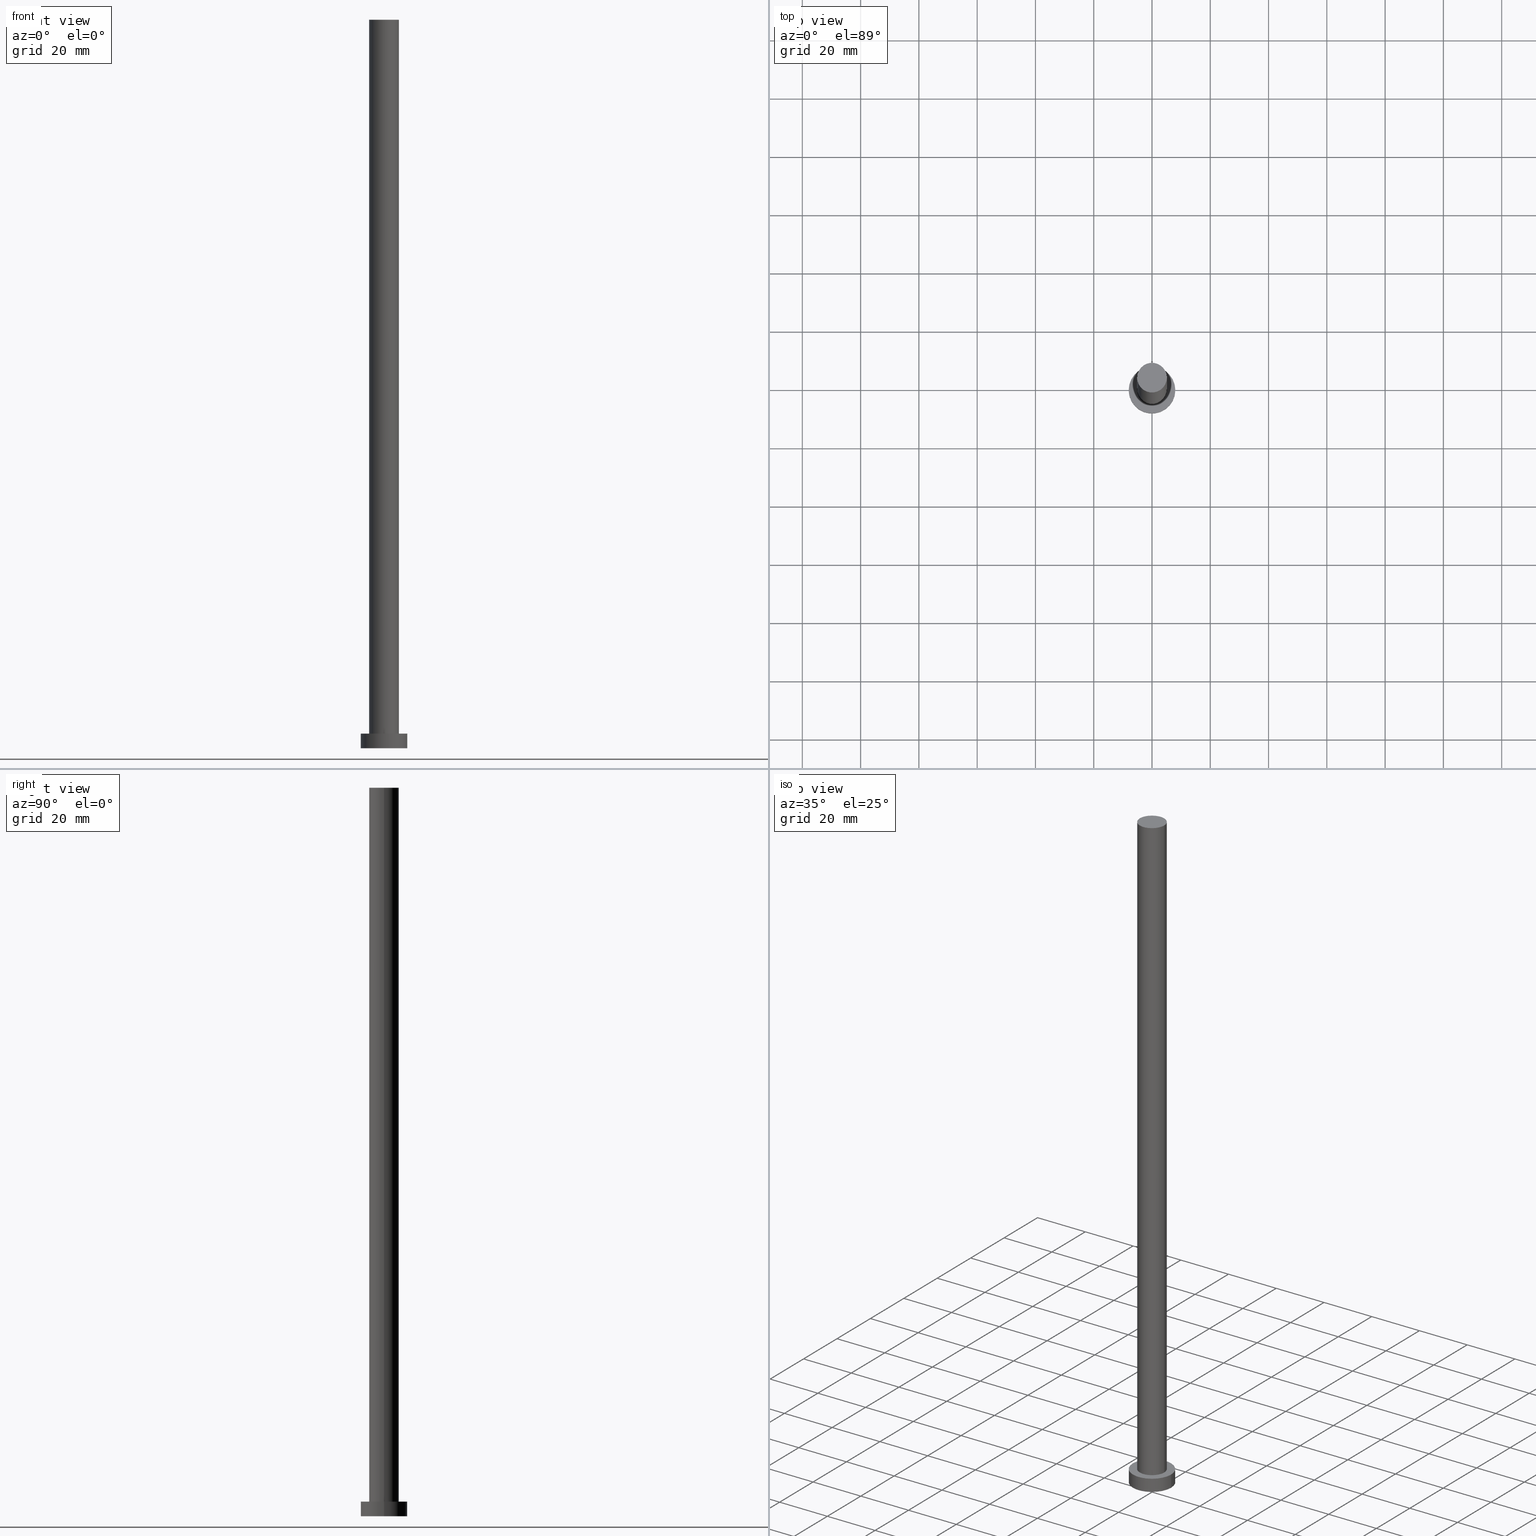
[diagram: canonical four-view strip — front | top / right | iso, engineering-drawing reading convention]
A machine part, canonical four-view strip (front | top / right | iso — engineering-drawing reading convention). The complete STEP part file that produces these views, byte-faithful:
ISO-10303-21;
HEADER;
FILE_DESCRIPTION (( 'STEP AP203' ),
    '1' );
FILE_NAME ('88fb.STEP',
    '2023-02-13T09:56:58',
    ( '' ),
    ( '' ),
    'SwSTEP 2.0',
    'SolidWorks 2019',
    '' );
FILE_SCHEMA (( 'CONFIG_CONTROL_DESIGN' ));
ENDSEC;

DATA;
#1 = VECTOR ( 'NONE', #213, 1000.000000000000000 ) ;
#2 =( GEOMETRIC_REPRESENTATION_CONTEXT ( 3 ) GLOBAL_UNCERTAINTY_ASSIGNED_CONTEXT ( ( #37 ) ) GLOBAL_UNIT_ASSIGNED_CONTEXT ( ( #56, #211, #57 ) ) REPRESENTATION_CONTEXT ( 'NONE', 'WORKASPACE' ) );
#3 = APPROVAL_ROLE ( '' ) ;
#4 = CC_DESIGN_APPROVAL ( #241, ( #158 ) ) ;
#5 = CARTESIAN_POINT ( 'NONE',  ( 0.000000000000000000, 0.000000000000000000, 5.000000000000000000 ) ) ;
#6 = EDGE_CURVE ( 'NONE', #156, #67, #212, .T. ) ;
#7 = DIRECTION ( 'NONE',  ( 0.000000000000000000, 0.000000000000000000, 1.000000000000000000 ) ) ;
#8 = VECTOR ( 'NONE', #95, 1000.000000000000000 ) ;
#9 = AXIS2_PLACEMENT_3D ( 'NONE', #147, #51, #125 ) ;
#10 = EDGE_LOOP ( 'NONE', ( #169, #85, #102, #189 ) ) ;
#11 = CARTESIAN_POINT ( 'NONE',  ( 0.000000000000000000, 0.000000000000000000, 250.0000000000000000 ) ) ;
#12 = EDGE_LOOP ( 'NONE', ( #104, #166 ) ) ;
#13 = FACE_OUTER_BOUND ( 'NONE', #108, .T. ) ;
#14 = EDGE_CURVE ( 'NONE', #149, #76, #226, .T. ) ;
#15 = CARTESIAN_POINT ( 'NONE',  ( 0.000000000000000000, 0.000000000000000000, 5.000000000000000000 ) ) ;
#16 = CLOSED_SHELL ( 'NONE', ( #223, #190, #140, #88, #157, #121, #118 ) ) ;
#17 = AXIS2_PLACEMENT_3D ( 'NONE', #15, #154, #19 ) ;
#18 = DATE_AND_TIME ( #133, #143 ) ;
#19 = DIRECTION ( 'NONE',  ( 1.000000000000000000, 0.000000000000000000, 0.000000000000000000 ) ) ;
#20 = APPROVAL ( #32, 'NEUR�EN�' ) ;
#21 = DIRECTION ( 'NONE',  ( 1.000000000000000000, 0.000000000000000000, 0.000000000000000000 ) ) ;
#22 = CC_DESIGN_SECURITY_CLASSIFICATION ( #138, ( #158 ) ) ;
#23 = AXIS2_PLACEMENT_3D ( 'NONE', #203, #62, #107 ) ;
#24 = CARTESIAN_POINT ( 'NONE',  ( 0.000000000000000000, 0.000000000000000000, 250.0000000000000000 ) ) ;
#25 = DIRECTION ( 'NONE',  ( 1.000000000000000000, 0.000000000000000000, 0.000000000000000000 ) ) ;
#26 = AXIS2_PLACEMENT_3D ( 'NONE', #24, #191, #39 ) ;
#27 = COORDINATED_UNIVERSAL_TIME_OFFSET ( 1, 0, .AHEAD. ) ;
#28 = CC_DESIGN_DATE_AND_TIME_ASSIGNMENT ( #160, #114, ( #138 ) ) ;
#29 = APPROVAL_ROLE ( '' ) ;
#30 = SECURITY_CLASSIFICATION_LEVEL ( 'unclassified' ) ;
#31 = ORIENTED_EDGE ( 'NONE', *, *, #47, .T. ) ;
#32 = APPROVAL_STATUS ( 'not_yet_approved' ) ;
#33 = ORIENTED_EDGE ( 'NONE', *, *, #237, .F. ) ;
#34 = CALENDAR_DATE ( 2023, 13, 2 ) ;
#35 = PERSON_AND_ORGANIZATION_ROLE ( 'design_supplier' ) ;
#36 = APPROVAL_STATUS ( 'not_yet_approved' ) ;
#37 = UNCERTAINTY_MEASURE_WITH_UNIT (LENGTH_MEASURE( 1.000000000000000082E-05 ), #56, 'distance_accuracy_value', 'NONE');
#38 = CARTESIAN_POINT ( 'NONE',  ( 0.000000000000000000, 0.000000000000000000, 250.0000000000000000 ) ) ;
#39 = DIRECTION ( 'NONE',  ( 1.000000000000000000, 0.000000000000000000, 0.000000000000000000 ) ) ;
#40 = EDGE_LOOP ( 'NONE', ( #217, #46 ) ) ;
#41 = CARTESIAN_POINT ( 'NONE',  ( 5.100000000000001421, 6.245698675651502811E-16, 5.000000000000000000 ) ) ;
#42 = APPLICATION_CONTEXT ( 'configuration controlled 3d designs of mechanical parts and assemblies' ) ;
#43 = ORIENTED_EDGE ( 'NONE', *, *, #14, .F. ) ;
#44 = DIRECTION ( 'NONE',  ( -0.000000000000000000, -0.000000000000000000, -1.000000000000000000 ) ) ;
#45 = PERSON_AND_ORGANIZATION ( #55, #176 ) ;
#46 = ORIENTED_EDGE ( 'NONE', *, *, #197, .T. ) ;
#47 = EDGE_CURVE ( 'NONE', #76, #149, #59, .T. ) ;
#48 = AXIS2_PLACEMENT_3D ( 'NONE', #180, #210, #136 ) ;
#49 = DATE_AND_TIME ( #148, #227 ) ;
#50 = ORIENTED_EDGE ( 'NONE', *, *, #113, .F. ) ;
#51 = DIRECTION ( 'NONE',  ( -0.000000000000000000, -0.000000000000000000, -1.000000000000000000 ) ) ;
#52 = CARTESIAN_POINT ( 'NONE',  ( -8.000000000000000000, 0.000000000000000000, 5.000000000000000000 ) ) ;
#53 = VECTOR ( 'NONE', #44, 1000.000000000000000 ) ;
#54 = CC_DESIGN_PERSON_AND_ORGANIZATION_ASSIGNMENT ( #87, #35, ( #158 ) ) ;
#55 = PERSON ( 'NEUR�EN�', 'NEUR�EN�', 'NEUR�EN�', ('NEUR�EN�'), ('NEUR�EN�'), ('NEUR�EN�') ) ;
#56 =( LENGTH_UNIT ( ) NAMED_UNIT ( * ) SI_UNIT ( .MILLI., .METRE. ) );
#57 =( NAMED_UNIT ( * ) SI_UNIT ( $, .STERADIAN. ) SOLID_ANGLE_UNIT ( ) );
#58 = ORIENTED_EDGE ( 'NONE', *, *, #6, .T. ) ;
#59 = CIRCLE ( 'NONE', #165, 5.100000000000001421 ) ;
#60 = PERSON_AND_ORGANIZATION_ROLE ( 'classification_officer' ) ;
#61 = APPROVAL_DATE_TIME ( #224, #241 ) ;
#62 = DIRECTION ( 'NONE',  ( 0.000000000000000000, 0.000000000000000000, 1.000000000000000000 ) ) ;
#63 = EDGE_CURVE ( 'NONE', #137, #156, #185, .T. ) ;
#64 = DATE_TIME_ROLE ( 'creation_date' ) ;
#65 = FACE_OUTER_BOUND ( 'NONE', #10, .T. ) ;
#66 = DATE_AND_TIME ( #34, #244 ) ;
#67 = VERTEX_POINT ( 'NONE', #161 ) ;
#68 = DIRECTION ( 'NONE',  ( 1.000000000000000000, 0.000000000000000000, 0.000000000000000000 ) ) ;
#69 = CIRCLE ( 'NONE', #216, 8.000000000000000000 ) ;
#70 = CARTESIAN_POINT ( 'NONE',  ( -5.100000000000001421, 0.000000000000000000, 250.0000000000000000 ) ) ;
#71 = EDGE_LOOP ( 'NONE', ( #194, #58, #207, #119 ) ) ;
#72 = COORDINATED_UNIVERSAL_TIME_OFFSET ( 1, 0, .AHEAD. ) ;
#73 = PLANE ( 'NONE',  #23 ) ;
#74 = DESIGN_CONTEXT ( 'detailed design', #42, 'design' ) ;
#75 = AXIS2_PLACEMENT_3D ( 'NONE', #193, #192, #111 ) ;
#76 = VERTEX_POINT ( 'NONE', #41 ) ;
#77 = COORDINATED_UNIVERSAL_TIME_OFFSET ( 1, 0, .AHEAD. ) ;
#78 = CC_DESIGN_PERSON_AND_ORGANIZATION_ASSIGNMENT ( #126, #248, ( #184 ) ) ;
#79 = APPROVAL_DATE_TIME ( #18, #135 ) ;
#80 = DIRECTION ( 'NONE',  ( 1.000000000000000000, 0.000000000000000000, 0.000000000000000000 ) ) ;
#81 = DIRECTION ( 'NONE',  ( 0.000000000000000000, 0.000000000000000000, 1.000000000000000000 ) ) ;
#82 = DIRECTION ( 'NONE',  ( 1.000000000000000000, 0.000000000000000000, 0.000000000000000000 ) ) ;
#83 = CC_DESIGN_APPROVAL ( #20, ( #184 ) ) ;
#84 = DIRECTION ( 'NONE',  ( -1.000000000000000000, 0.000000000000000000, 0.000000000000000000 ) ) ;
#85 = ORIENTED_EDGE ( 'NONE', *, *, #63, .F. ) ;
#86 = FACE_OUTER_BOUND ( 'NONE', #12, .T. ) ;
#87 = PERSON_AND_ORGANIZATION ( #55, #176 ) ;
#88 = ADVANCED_FACE ( 'NONE', ( #242, #141 ), #187, .T. ) ;
#89 = EDGE_LOOP ( 'NONE', ( #43, #159 ) ) ;
#90 = VERTEX_POINT ( 'NONE', #175 ) ;
#91 = EDGE_CURVE ( 'NONE', #137, #90, #153, .T. ) ;
#92 = CYLINDRICAL_SURFACE ( 'NONE', #48, 5.100000000000001421 ) ;
#93 = CARTESIAN_POINT ( 'NONE',  ( 0.000000000000000000, 0.000000000000000000, 0.000000000000000000 ) ) ;
#94 = AXIS2_PLACEMENT_3D ( 'NONE', #255, #131, #68 ) ;
#95 = DIRECTION ( 'NONE',  ( -0.000000000000000000, -0.000000000000000000, -1.000000000000000000 ) ) ;
#96 = CARTESIAN_POINT ( 'NONE',  ( 0.000000000000000000, 0.000000000000000000, 5.000000000000000000 ) ) ;
#97 = APPLICATION_CONTEXT ( 'configuration controlled 3d designs of mechanical parts and assemblies' ) ;
#98 = CIRCLE ( 'NONE', #26, 5.100000000000001421 ) ;
#99 = CARTESIAN_POINT ( 'NONE',  ( 8.000000000000000000, 9.797174393178825657E-16, 5.000000000000000000 ) ) ;
#100 = CIRCLE ( 'NONE', #17, 8.000000000000000000 ) ;
#101 = CYLINDRICAL_SURFACE ( 'NONE', #215, 5.100000000000001421 ) ;
#102 = ORIENTED_EDGE ( 'NONE', *, *, #91, .T. ) ;
#103 = CC_DESIGN_PERSON_AND_ORGANIZATION_ASSIGNMENT ( #173, #60, ( #138 ) ) ;
#104 = ORIENTED_EDGE ( 'NONE', *, *, #246, .T. ) ;
#105 = LOCAL_TIME ( 10, 56, 58.00000000000000000, #243 ) ;
#106 = ORIENTED_EDGE ( 'NONE', *, *, #246, .F. ) ;
#107 = DIRECTION ( 'NONE',  ( 1.000000000000000000, 0.000000000000000000, -0.000000000000000000 ) ) ;
#108 = EDGE_LOOP ( 'NONE', ( #229, #50 ) ) ;
#109 = AXIS2_PLACEMENT_3D ( 'NONE', #183, #7, #218 ) ;
#110 = APPROVAL_PERSON_ORGANIZATION ( #234, #135, #3 ) ;
#111 = DIRECTION ( 'NONE',  ( -1.000000000000000000, 0.000000000000000000, 0.000000000000000000 ) ) ;
#112 = CARTESIAN_POINT ( 'NONE',  ( 5.100000000000001421, 6.245698675651502811E-16, 250.0000000000000000 ) ) ;
#113 = EDGE_CURVE ( 'NONE', #67, #90, #219, .T. ) ;
#114 = DATE_TIME_ROLE ( 'classification_date' ) ;
#115 = PERSON_AND_ORGANIZATION_ROLE ( 'design_owner' ) ;
#116 = DIRECTION ( 'NONE',  ( 0.000000000000000000, 0.000000000000000000, 1.000000000000000000 ) ) ;
#117 = PERSON_AND_ORGANIZATION ( #55, #176 ) ;
#118 = ADVANCED_FACE ( 'NONE', ( #86 ), #151, .T. ) ;
#119 = ORIENTED_EDGE ( 'NONE', *, *, #91, .F. ) ;
#120 = MANIFOLD_SOLID_BREP ( 'P�idat vysunut�m3', #16 ) ;
#121 = ADVANCED_FACE ( 'NONE', ( #130 ), #101, .T. ) ;
#122 = APPLICATION_PROTOCOL_DEFINITION ( 'international standard', 'config_control_design', 1994, #42 ) ;
#123 = PERSON_AND_ORGANIZATION_ROLE ( 'creator' ) ;
#124 = CARTESIAN_POINT ( 'NONE',  ( 8.000000000000000000, 9.797174393178825657E-16, 5.000000000000000000 ) ) ;
#125 = DIRECTION ( 'NONE',  ( -1.000000000000000000, 0.000000000000000000, 0.000000000000000000 ) ) ;
#126 = PERSON_AND_ORGANIZATION ( #55, #176 ) ;
#127 = LINE ( 'NONE', #112, #1 ) ;
#128 = CARTESIAN_POINT ( 'NONE',  ( 0.000000000000000000, 0.000000000000000000, 5.000000000000000000 ) ) ;
#129 = CALENDAR_DATE ( 2023, 13, 2 ) ;
#130 = FACE_OUTER_BOUND ( 'NONE', #225, .T. ) ;
#131 = DIRECTION ( 'NONE',  ( 0.000000000000000000, 0.000000000000000000, 1.000000000000000000 ) ) ;
#132 = FACE_OUTER_BOUND ( 'NONE', #71, .T. ) ;
#133 = CALENDAR_DATE ( 2023, 13, 2 ) ;
#134 = AXIS2_PLACEMENT_3D ( 'NONE', #38, #195, #80 ) ;
#135 = APPROVAL ( #36, 'NEUR�EN�' ) ;
#136 = DIRECTION ( 'NONE',  ( -1.000000000000000000, 0.000000000000000000, 0.000000000000000000 ) ) ;
#137 = VERTEX_POINT ( 'NONE', #247 ) ;
#138 = SECURITY_CLASSIFICATION ( '', '', #30 ) ;
#139 = ORIENTED_EDGE ( 'NONE', *, *, #186, .T. ) ;
#140 = ADVANCED_FACE ( 'NONE', ( #65 ), #230, .T. ) ;
#141 = FACE_OUTER_BOUND ( 'NONE', #40, .T. ) ;
#142 = CC_DESIGN_APPROVAL ( #135, ( #138 ) ) ;
#143 = LOCAL_TIME ( 10, 56, 58.00000000000000000, #77 ) ;
#144 = DIRECTION ( 'NONE',  ( -0.000000000000000000, -0.000000000000000000, -1.000000000000000000 ) ) ;
#145 = LINE ( 'NONE', #222, #53 ) ;
#146 = ORIENTED_EDGE ( 'NONE', *, *, #14, .T. ) ;
#147 = CARTESIAN_POINT ( 'NONE',  ( 0.000000000000000000, 0.000000000000000000, 5.000000000000000000 ) ) ;
#148 = CALENDAR_DATE ( 2023, 13, 2 ) ;
#149 = VERTEX_POINT ( 'NONE', #253 ) ;
#150 = APPROVAL_PERSON_ORGANIZATION ( #220, #241, #29 ) ;
#151 = PLANE ( 'NONE',  #245 ) ;
#152 = ORIENTED_EDGE ( 'NONE', *, *, #163, .F. ) ;
#153 = LINE ( 'NONE', #52, #209 ) ;
#154 = DIRECTION ( 'NONE',  ( 0.000000000000000000, 0.000000000000000000, 1.000000000000000000 ) ) ;
#155 = SHAPE_DEFINITION_REPRESENTATION ( #205, #164 ) ;
#156 = VERTEX_POINT ( 'NONE', #124 ) ;
#157 = ADVANCED_FACE ( 'NONE', ( #13 ), #73, .F. ) ;
#158 = PRODUCT_DEFINITION_FORMATION_WITH_SPECIFIED_SOURCE ( 'LIBOVOLN�', '', #172, .NOT_KNOWN. ) ;
#159 = ORIENTED_EDGE ( 'NONE', *, *, #47, .F. ) ;
#160 = DATE_AND_TIME ( #251, #250 ) ;
#161 = CARTESIAN_POINT ( 'NONE',  ( 8.000000000000000000, 9.797174393178825657E-16, 0.000000000000000000 ) ) ;
#162 = PERSON_AND_ORGANIZATION ( #55, #176 ) ;
#163 = EDGE_CURVE ( 'NONE', #171, #149, #145, .T. ) ;
#164 = ADVANCED_BREP_SHAPE_REPRESENTATION ( '88fb', ( #120, #200 ), #2 ) ;
#165 = AXIS2_PLACEMENT_3D ( 'NONE', #96, #81, #82 ) ;
#166 = ORIENTED_EDGE ( 'NONE', *, *, #237, .T. ) ;
#167 = CARTESIAN_POINT ( 'NONE',  ( 0.000000000000000000, 0.000000000000000000, 250.0000000000000000 ) ) ;
#168 = DIRECTION ( 'NONE',  ( 0.000000000000000000, 0.000000000000000000, 1.000000000000000000 ) ) ;
#169 = ORIENTED_EDGE ( 'NONE', *, *, #6, .F. ) ;
#170 = APPROVAL_PERSON_ORGANIZATION ( #162, #20, #202 ) ;
#171 = VERTEX_POINT ( 'NONE', #70 ) ;
#172 = PRODUCT ( '88fb', '88fb', '', ( #240 ) ) ;
#173 = PERSON_AND_ORGANIZATION ( #55, #176 ) ;
#174 = PRODUCT_RELATED_PRODUCT_CATEGORY ( 'detail', '', ( #172 ) ) ;
#175 = CARTESIAN_POINT ( 'NONE',  ( -8.000000000000000000, 0.000000000000000000, 0.000000000000000000 ) ) ;
#176 = ORGANIZATION ( 'NEUR�EN�', 'NEUR�EN�', '' ) ;
#177 = CARTESIAN_POINT ( 'NONE',  ( 5.100000000000001421, 6.245698675651502811E-16, 250.0000000000000000 ) ) ;
#178 = FACE_OUTER_BOUND ( 'NONE', #188, .T. ) ;
#179 = DIRECTION ( 'NONE',  ( 0.000000000000000000, 0.000000000000000000, 1.000000000000000000 ) ) ;
#180 = CARTESIAN_POINT ( 'NONE',  ( 0.000000000000000000, 0.000000000000000000, 250.0000000000000000 ) ) ;
#181 = DIRECTION ( 'NONE',  ( 1.000000000000000000, 0.000000000000000000, 0.000000000000000000 ) ) ;
#182 = AXIS2_PLACEMENT_3D ( 'NONE', #128, #168, #249 ) ;
#183 = CARTESIAN_POINT ( 'NONE',  ( 0.000000000000000000, 0.000000000000000000, 5.000000000000000000 ) ) ;
#184 = PRODUCT_DEFINITION ( 'NEZN�M�', '', #158, #74 ) ;
#185 = CIRCLE ( 'NONE', #109, 8.000000000000000000 ) ;
#186 = EDGE_CURVE ( 'NONE', #252, #76, #127, .T. ) ;
#187 = PLANE ( 'NONE',  #182 ) ;
#188 = EDGE_LOOP ( 'NONE', ( #33, #139, #31, #152 ) ) ;
#189 = ORIENTED_EDGE ( 'NONE', *, *, #214, .T. ) ;
#190 = ADVANCED_FACE ( 'NONE', ( #132 ), #236, .T. ) ;
#191 = DIRECTION ( 'NONE',  ( 0.000000000000000000, 0.000000000000000000, 1.000000000000000000 ) ) ;
#192 = DIRECTION ( 'NONE',  ( -0.000000000000000000, -0.000000000000000000, -1.000000000000000000 ) ) ;
#193 = CARTESIAN_POINT ( 'NONE',  ( 0.000000000000000000, 0.000000000000000000, 5.000000000000000000 ) ) ;
#194 = ORIENTED_EDGE ( 'NONE', *, *, #197, .F. ) ;
#195 = DIRECTION ( 'NONE',  ( 0.000000000000000000, 0.000000000000000000, 1.000000000000000000 ) ) ;
#196 = CIRCLE ( 'NONE', #134, 5.100000000000001421 ) ;
#197 = EDGE_CURVE ( 'NONE', #156, #137, #100, .T. ) ;
#198 = DIRECTION ( 'NONE',  ( 0.000000000000000000, 0.000000000000000000, 1.000000000000000000 ) ) ;
#199 = CC_DESIGN_DATE_AND_TIME_ASSIGNMENT ( #66, #64, ( #184 ) ) ;
#200 = AXIS2_PLACEMENT_3D ( 'NONE', #239, #116, #181 ) ;
#201 = AXIS2_PLACEMENT_3D ( 'NONE', #5, #198, #25 ) ;
#202 = APPROVAL_ROLE ( '' ) ;
#203 = CARTESIAN_POINT ( 'NONE',  ( 0.000000000000000000, 0.000000000000000000, 0.000000000000000000 ) ) ;
#204 = APPROVAL_DATE_TIME ( #49, #20 ) ;
#205 = PRODUCT_DEFINITION_SHAPE ( 'NONE', 'NONE',  #184 ) ;
#206 = DIRECTION ( 'NONE',  ( 1.000000000000000000, 0.000000000000000000, -0.000000000000000000 ) ) ;
#207 = ORIENTED_EDGE ( 'NONE', *, *, #113, .T. ) ;
#208 = CC_DESIGN_PERSON_AND_ORGANIZATION_ASSIGNMENT ( #45, #123, ( #158 ) ) ;
#209 = VECTOR ( 'NONE', #235, 1000.000000000000000 ) ;
#210 = DIRECTION ( 'NONE',  ( -0.000000000000000000, -0.000000000000000000, -1.000000000000000000 ) ) ;
#211 =( NAMED_UNIT ( * ) PLANE_ANGLE_UNIT ( ) SI_UNIT ( $, .RADIAN. ) );
#212 = LINE ( 'NONE', #99, #8 ) ;
#213 = DIRECTION ( 'NONE',  ( -0.000000000000000000, -0.000000000000000000, -1.000000000000000000 ) ) ;
#214 = EDGE_CURVE ( 'NONE', #90, #67, #69, .T. ) ;
#215 = AXIS2_PLACEMENT_3D ( 'NONE', #167, #144, #84 ) ;
#216 = AXIS2_PLACEMENT_3D ( 'NONE', #93, #179, #21 ) ;
#217 = ORIENTED_EDGE ( 'NONE', *, *, #63, .T. ) ;
#218 = DIRECTION ( 'NONE',  ( 1.000000000000000000, 0.000000000000000000, 0.000000000000000000 ) ) ;
#219 = CIRCLE ( 'NONE', #94, 8.000000000000000000 ) ;
#220 = PERSON_AND_ORGANIZATION ( #55, #176 ) ;
#221 = DIRECTION ( 'NONE',  ( 0.000000000000000000, 0.000000000000000000, 1.000000000000000000 ) ) ;
#222 = CARTESIAN_POINT ( 'NONE',  ( -5.100000000000001421, 0.000000000000000000, 250.0000000000000000 ) ) ;
#223 = ADVANCED_FACE ( 'NONE', ( #178 ), #92, .T. ) ;
#224 = DATE_AND_TIME ( #129, #105 ) ;
#225 = EDGE_LOOP ( 'NONE', ( #254, #106, #233, #146 ) ) ;
#226 = CIRCLE ( 'NONE', #201, 5.100000000000001421 ) ;
#227 = LOCAL_TIME ( 10, 56, 58.00000000000000000, #27 ) ;
#228 = COORDINATED_UNIVERSAL_TIME_OFFSET ( 1, 0, .AHEAD. ) ;
#229 = ORIENTED_EDGE ( 'NONE', *, *, #214, .F. ) ;
#230 = CYLINDRICAL_SURFACE ( 'NONE', #9, 8.000000000000000000 ) ;
#231 = APPROVAL_STATUS ( 'not_yet_approved' ) ;
#232 = CC_DESIGN_PERSON_AND_ORGANIZATION_ASSIGNMENT ( #117, #115, ( #172 ) ) ;
#233 = ORIENTED_EDGE ( 'NONE', *, *, #163, .T. ) ;
#234 = PERSON_AND_ORGANIZATION ( #55, #176 ) ;
#235 = DIRECTION ( 'NONE',  ( -0.000000000000000000, -0.000000000000000000, -1.000000000000000000 ) ) ;
#236 = CYLINDRICAL_SURFACE ( 'NONE', #75, 8.000000000000000000 ) ;
#237 = EDGE_CURVE ( 'NONE', #252, #171, #196, .T. ) ;
#238 = APPLICATION_PROTOCOL_DEFINITION ( 'international standard', 'config_control_design', 1994, #97 ) ;
#239 = CARTESIAN_POINT ( 'NONE',  ( 0.000000000000000000, 0.000000000000000000, 0.000000000000000000 ) ) ;
#240 = MECHANICAL_CONTEXT ( 'NONE', #97, 'mechanical' ) ;
#241 = APPROVAL ( #231, 'NEUR�EN�' ) ;
#242 = FACE_BOUND ( 'NONE', #89, .T. ) ;
#243 = COORDINATED_UNIVERSAL_TIME_OFFSET ( 1, 0, .AHEAD. ) ;
#244 = LOCAL_TIME ( 10, 56, 58.00000000000000000, #72 ) ;
#245 = AXIS2_PLACEMENT_3D ( 'NONE', #11, #221, #206 ) ;
#246 = EDGE_CURVE ( 'NONE', #171, #252, #98, .T. ) ;
#247 = CARTESIAN_POINT ( 'NONE',  ( -8.000000000000000000, 0.000000000000000000, 5.000000000000000000 ) ) ;
#248 = PERSON_AND_ORGANIZATION_ROLE ( 'creator' ) ;
#249 = DIRECTION ( 'NONE',  ( 1.000000000000000000, 0.000000000000000000, -0.000000000000000000 ) ) ;
#250 = LOCAL_TIME ( 10, 56, 58.00000000000000000, #228 ) ;
#251 = CALENDAR_DATE ( 2023, 13, 2 ) ;
#252 = VERTEX_POINT ( 'NONE', #177 ) ;
#253 = CARTESIAN_POINT ( 'NONE',  ( -5.100000000000001421, 0.000000000000000000, 5.000000000000000000 ) ) ;
#254 = ORIENTED_EDGE ( 'NONE', *, *, #186, .F. ) ;
#255 = CARTESIAN_POINT ( 'NONE',  ( 0.000000000000000000, 0.000000000000000000, 0.000000000000000000 ) ) ;
ENDSEC;
END-ISO-10303-21;
